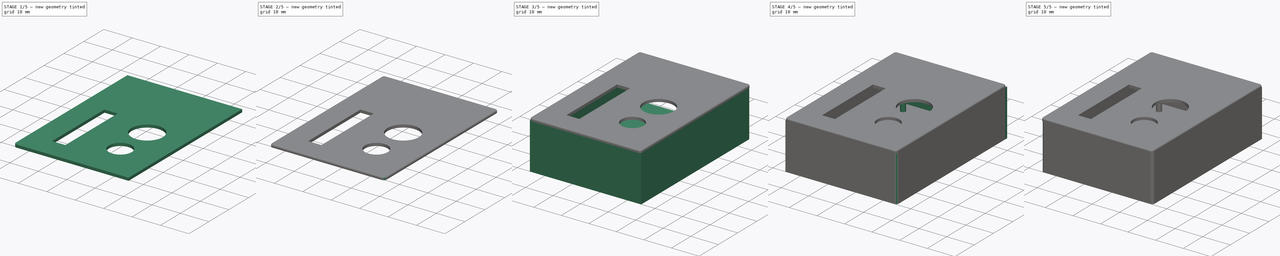
[diagram: build sequence overview — one tinted view per stage of 5, left to right]
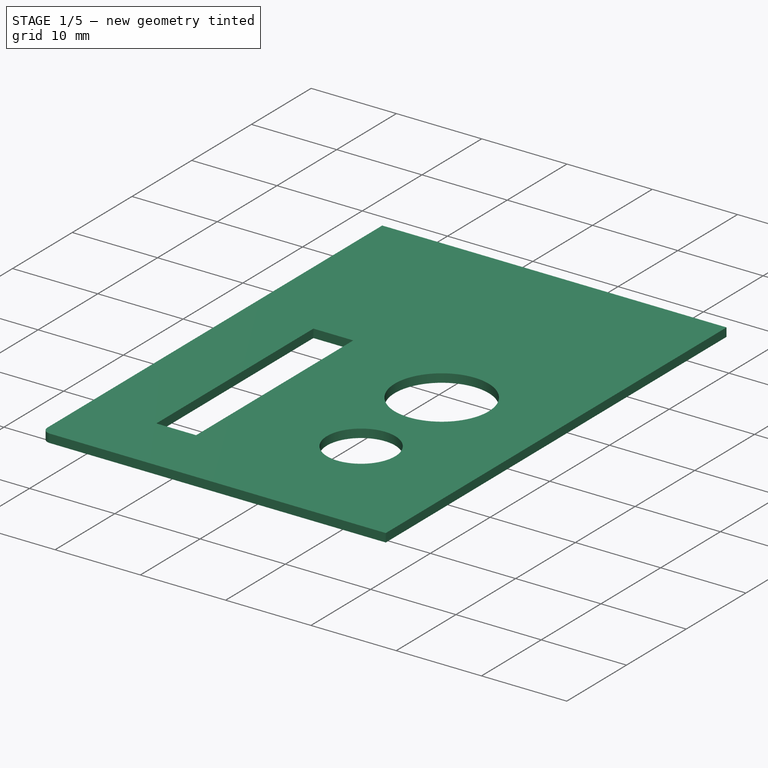
[diagram: stage 1 of 5 — iso view after this stage's code; geometry added in this stage tinted green]
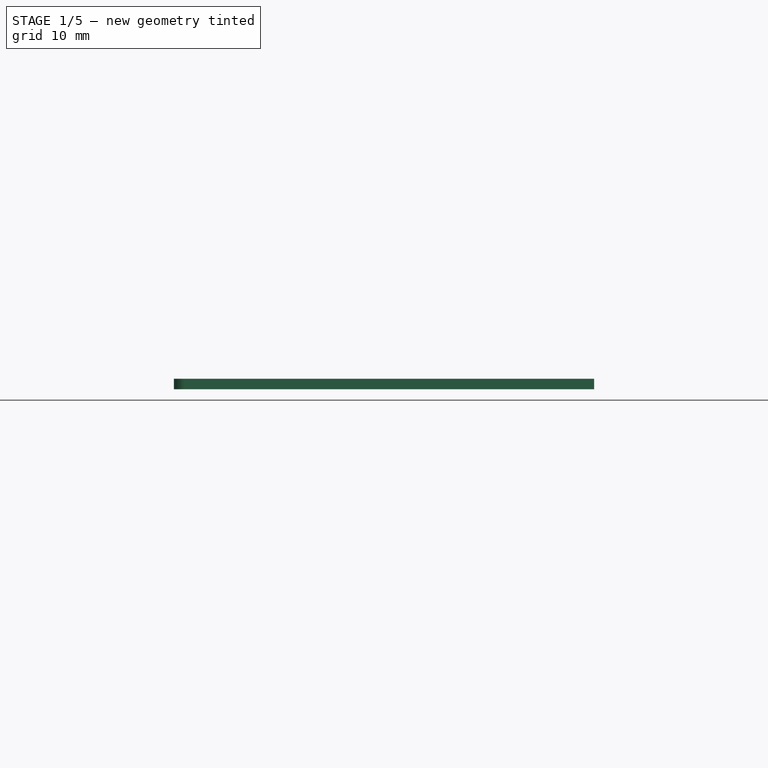
[diagram: stage 1 of 5 — front view after this stage's code; geometry added in this stage tinted green]
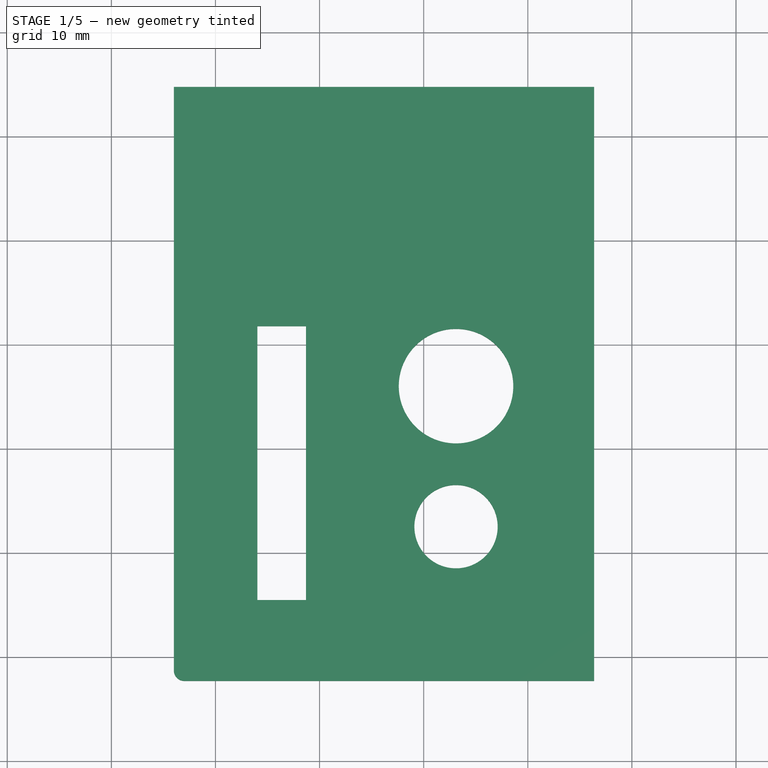
[diagram: stage 1 of 5 — top view after this stage's code; geometry added in this stage tinted green]
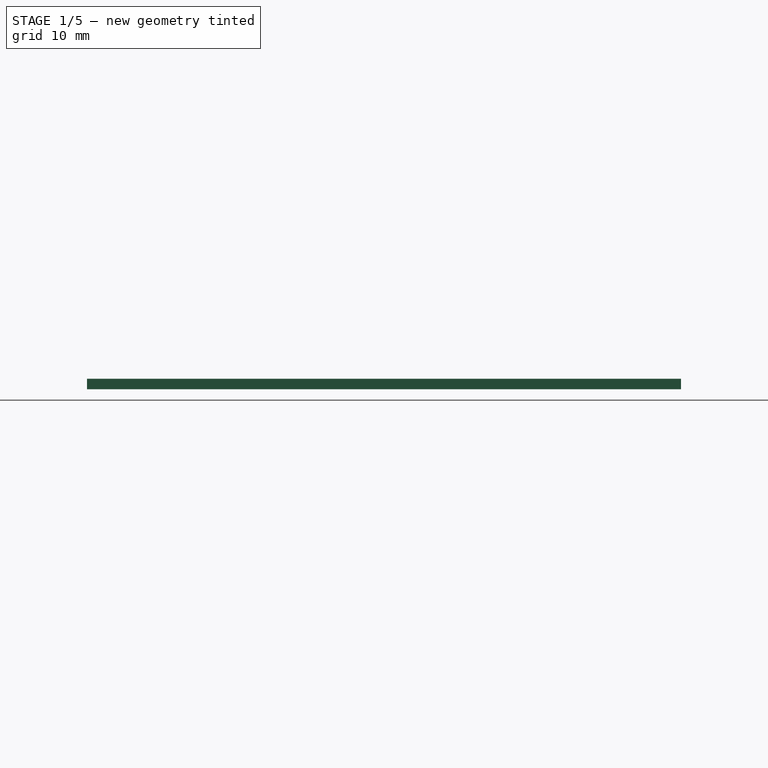
[diagram: stage 1 of 5 — right view after this stage's code; geometry added in this stage tinted green]
FCSTD DOCUMENT  (FreeCAD 0.15R4671 (Git))
Label: Control Board + Enclosure
License: All rights reserved
LicenseURL: http://en.wikipedia.org/wiki/All_rights_reserved
objects: PartDesign::Fillet×9, Sketcher::SketchObject×8, Part::Feature×6, PartDesign::Pad×5, App::DocumentObjectGroup×3, PartDesign::Pocket×3
note: 39 computed .brp shape members not serialized (recipe doc carries the construction recipe); baked Part::Feature solids carry a one-line shape summary decoded from their .brp

FEATURE [App::DocumentObjectGroup] Group001  label="Enclosure"
  Group = -> [Pad001,Pocket,Pad002,Pad003,Pocket001,Fillet,Fillet001,Fillet002,Fillet003]
FEATURE [Sketcher::SketchObject] Sketch009
  Placement = pos=(0,0,10.9) rot=(0,0,1;0rad)
  sketch-geometry (4):
    g0: LineSegment StartX=-3.99774 StartY=54.775 StartZ=0 EndX=36.3748 EndY=54.775 EndZ=0
    g1: LineSegment StartX=36.3748 StartY=54.775 StartZ=0 EndX=36.3748 EndY=-2.28504 EndZ=0
    g2: LineSegment StartX=36.3748 StartY=-2.28504 StartZ=0 EndX=-3.99774 EndY=-2.28504 EndZ=0
    g3: LineSegment StartX=-3.99774 StartY=-2.28504 StartZ=0 EndX=-3.99774 EndY=54.775 EndZ=0
  constraints (10):
    c: Coincident(g0,g1)
    c: Coincident(g1,g2)
    c: Coincident(g2,g3)
    c: Coincident(g3,g0)
    c: Horizontal(g0)
    c: Horizontal(g2)
    c: Vertical(g1)
    c: Vertical(g3)
    c: DistanceX(g0,g0) = 40.3725
    c: DistanceY(g0,g1) = -57.06
FEATURE [PartDesign::Pad] Pad005
  Length = 1
  Length2 = 100
  Placement = pos=(0,0,10.9) rot=(0,0,1;0rad)
  Sketch = -> Sketch009
  Type = 0
FEATURE [Sketcher::SketchObject] Sketch010
  Placement = pos=(0,0,11.9) rot=(0,0,1;0rad)
  Support = -> Pad005 [Face6]
  sketch-geometry (7):
    g0: LineSegment StartX=4.02764 StartY=31.788 StartZ=0 EndX=8.70181 EndY=31.788 EndZ=0
    g1: LineSegment StartX=8.70181 StartY=31.788 StartZ=0 EndX=8.70181 EndY=5.48588 EndZ=0
    g2: LineSegment StartX=8.70181 StartY=5.48588 StartZ=0 EndX=4.02764 EndY=5.48588 EndZ=0
    g3: LineSegment StartX=4.02764 StartY=5.48588 StartZ=0 EndX=4.02764 EndY=31.788 EndZ=0
    g4: Circle CenterX=23.1067 CenterY=26.0307 CenterZ=0 NormalX=0 NormalY=0 NormalZ=1 Radius=5.5
    g5: Circle CenterX=23.1067 CenterY=12.5307 CenterZ=0 NormalX=0 NormalY=0 NormalZ=1 Radius=4
    g6: LineSegment [constr] StartX=23.1067 StartY=26.0307 StartZ=0 EndX=23.1067 EndY=12.5307 EndZ=0
  constraints (14):
    c: Coincident(g0,g1)
    c: Coincident(g1,g2)
    c: Coincident(g2,g3)
    c: Coincident(g3,g0)
    c: Horizontal(g0)
    c: Horizontal(g2)
    c: Vertical(g1)
    c: Vertical(g3)
    c: Coincident(g6,g4)
    c: Coincident(g6,g5)
    c: Vertical(g6)
    c: Radius(g4) = 5.5
    c: Radius(g5) = 4
    c: DistanceY(g4,g5) = -13.5
FEATURE [PartDesign::Pocket] Pocket003
  Length = 2
  Placement = pos=(0,0,10.9) rot=(0,0,1;0rad)
  Sketch = -> Sketch010
  Type = 0
FEATURE [PartDesign::Fillet] Fillet009
  Base = -> Pocket003 [Edge5]
  Placement = pos=(0,0,10.9) rot=(0,0,1;0rad)
  Radius = 1
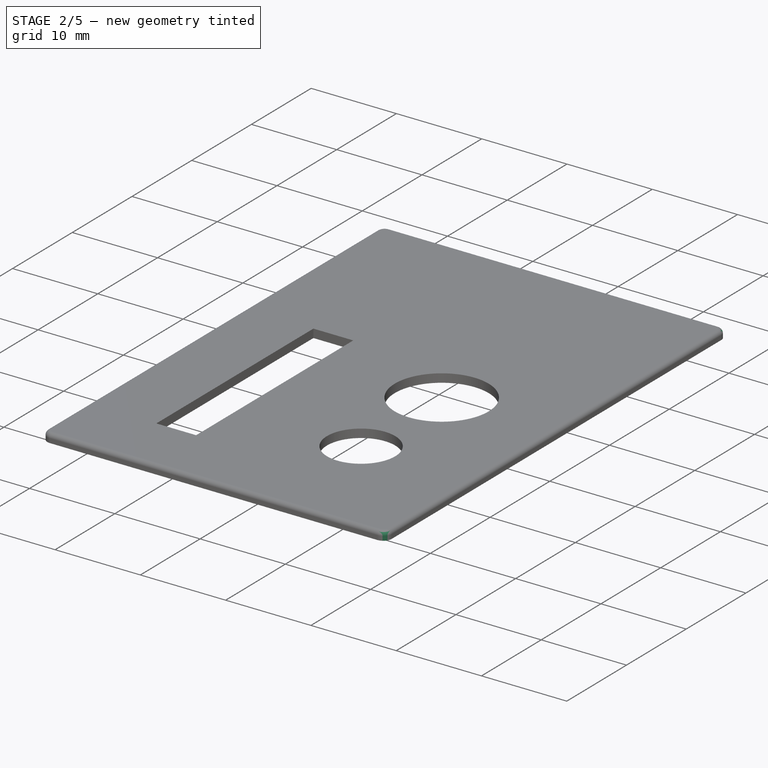
[diagram: stage 2 of 5 — iso view after this stage's code; geometry added in this stage tinted green]
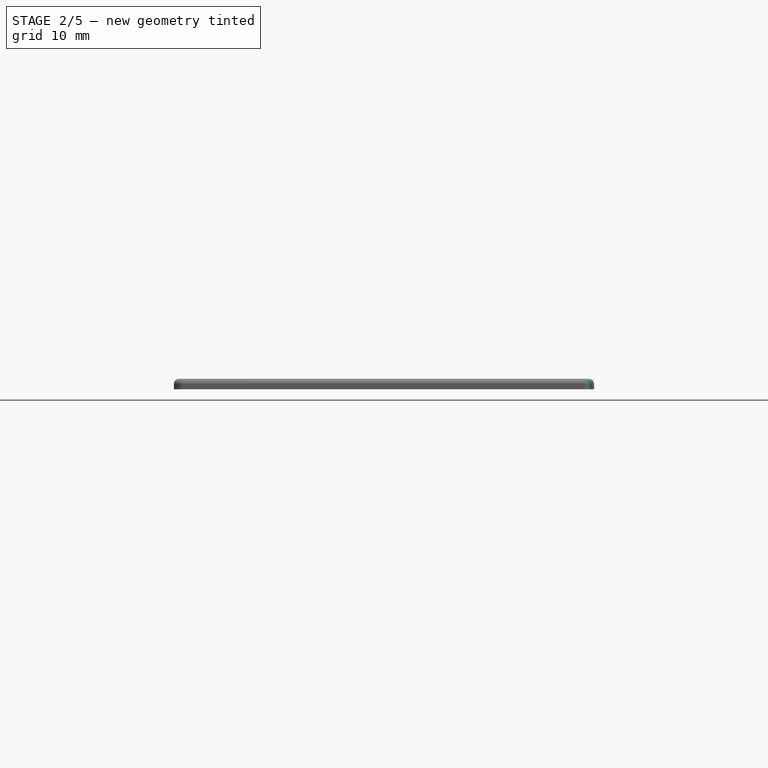
[diagram: stage 2 of 5 — front view after this stage's code; geometry added in this stage tinted green]
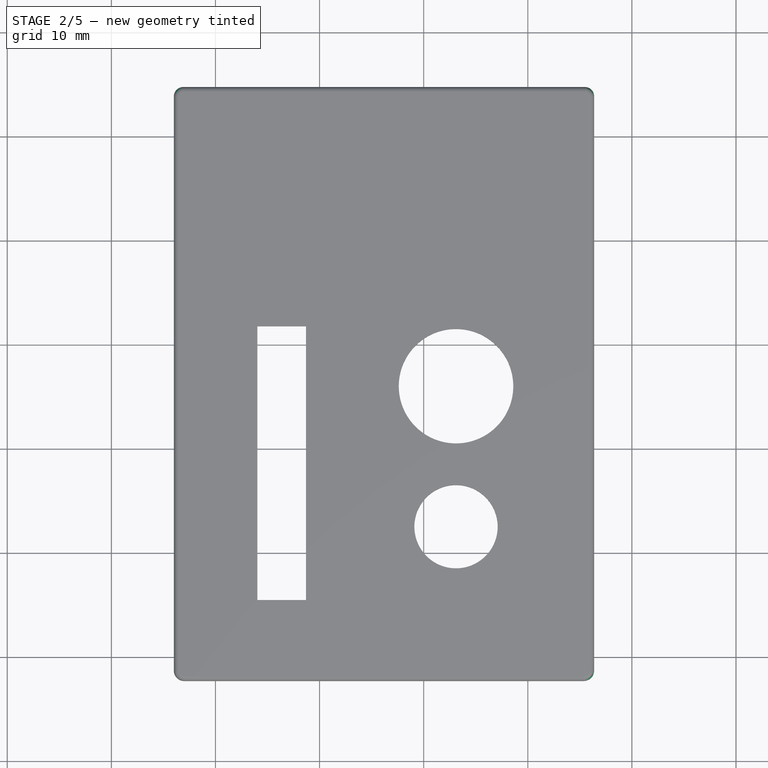
[diagram: stage 2 of 5 — top view after this stage's code; geometry added in this stage tinted green]
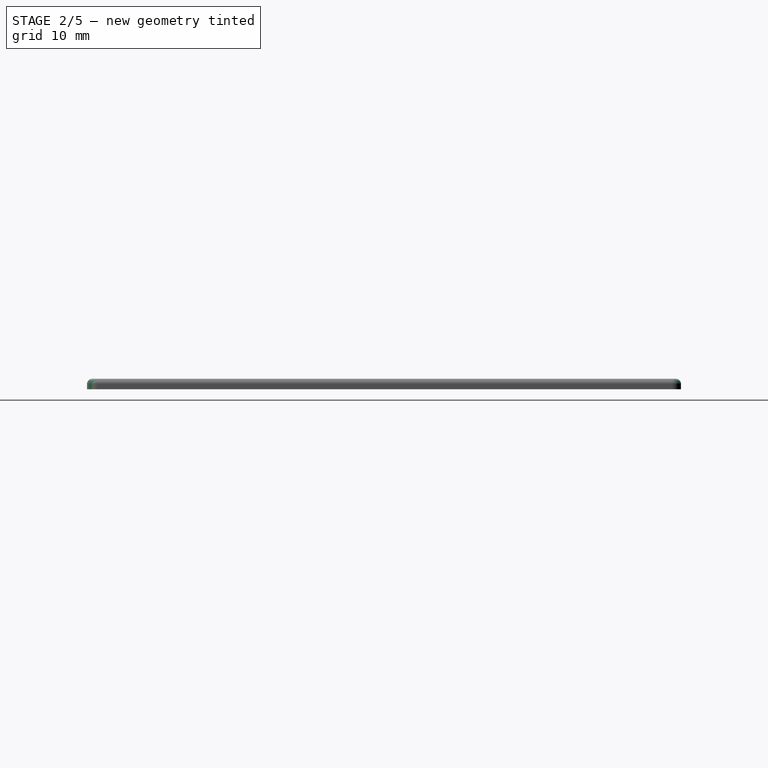
[diagram: stage 2 of 5 — right view after this stage's code; geometry added in this stage tinted green]
FEATURE [PartDesign::Fillet] Fillet010
  Base = -> Fillet009 [Edge27]
  Placement = pos=(0,0,10.9) rot=(0,0,1;0rad)
  Radius = 1
FEATURE [PartDesign::Fillet] Fillet011
  Base = -> Fillet010 [Edge20]
  Placement = pos=(0,0,10.9) rot=(0,0,1;0rad)
  Radius = 0.9
FEATURE [PartDesign::Fillet] Fillet012
  Base = -> Fillet011 [Edge21]
  Placement = pos=(0,0,10.9) rot=(0,0,1;0rad)
  Radius = 0.9
FEATURE [PartDesign::Fillet] Fillet013
  Base = -> Fillet012 [Edge25]
  Placement = pos=(0,0,10.9) rot=(0,0,1;0rad)
  Radius = 0.5
FEATURE [App::DocumentObjectGroup] Group002  label="Enclosure Top"
  Group = -> [Pad005,Pocket003,Fillet009,Fillet010,Fillet011,Fillet012,Fillet013]
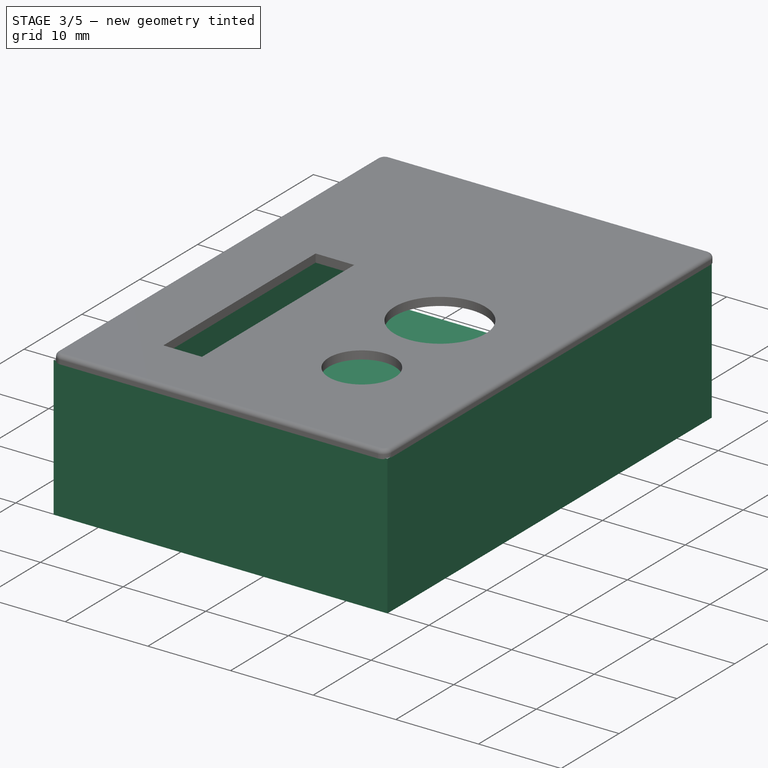
[diagram: stage 3 of 5 — iso view after this stage's code; geometry added in this stage tinted green]
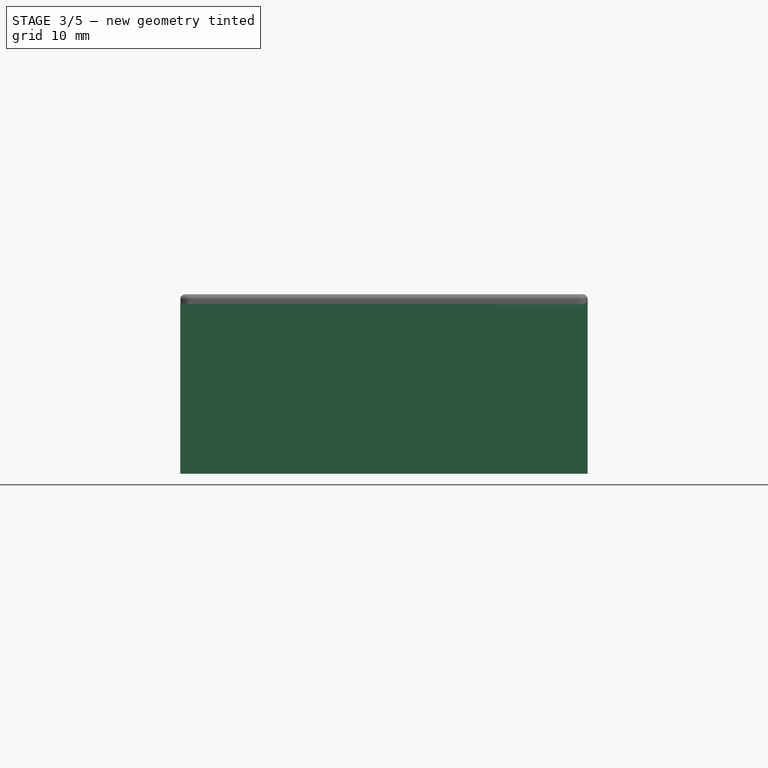
[diagram: stage 3 of 5 — front view after this stage's code; geometry added in this stage tinted green]
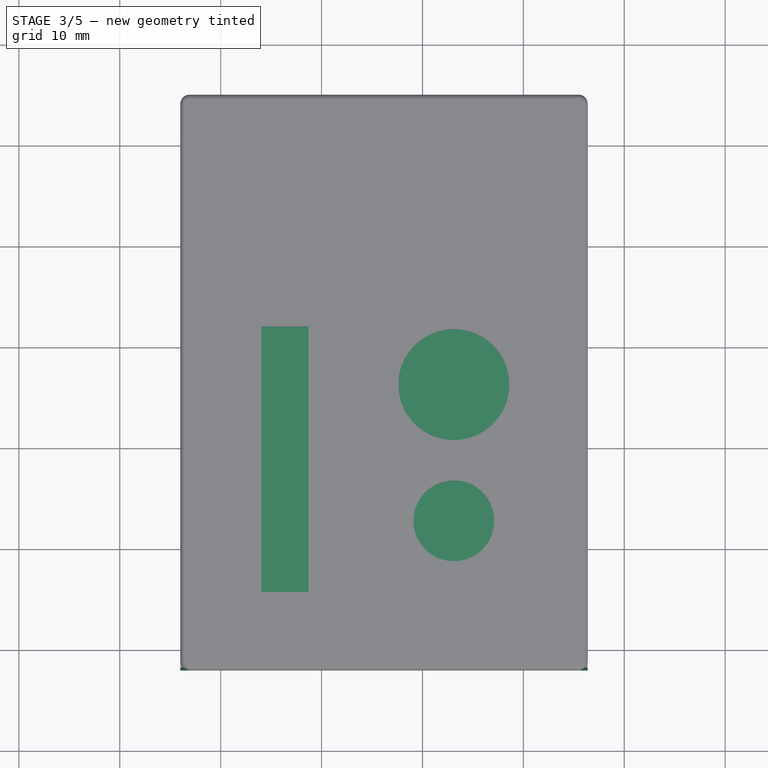
[diagram: stage 3 of 5 — top view after this stage's code; geometry added in this stage tinted green]
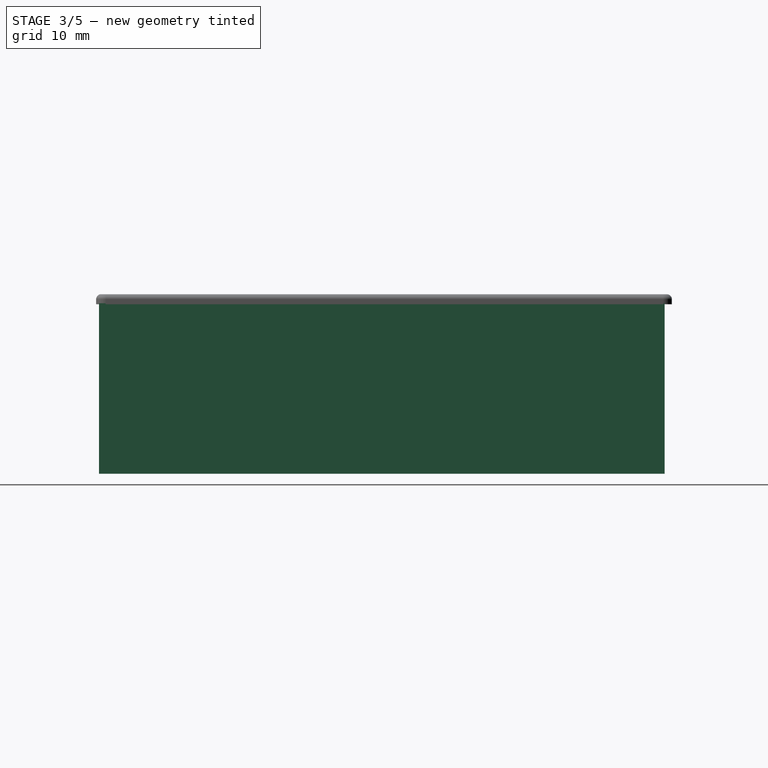
[diagram: stage 3 of 5 — right view after this stage's code; geometry added in this stage tinted green]
FEATURE [Part::Feature] Part__Feature  label="Rotary"
  Placement = pos=(27.8444,11.6718,2.49206) rot=(0.579537,0.573998,0.578501;4.18221rad)
  shape: bbox 10.71 x 13.44 x 25.96 mm, 62 faces (baked)
FEATURE [Part::Feature] Part__Feature002  label="Button"
  Placement = pos=(22.8995,26.0923,1.71929) rot=(-0.293836,0.953761,0.063244;0.019769rad)
  shape: bbox 11.51 x 12.03 x 17.95 mm, 23 faces (baked)
FEATURE [Part::Feature] Part__Feature004  label="Slide"
  Placement = pos=(1.83795,36.2282,0) rot=(0,0,-1;1.5708rad)
  shape: bbox 9 x 35 x 19 mm, 53 faces (baked)
FEATURE [Part::Feature] Part__Feature005  label="Board_outline"
  shape: bbox 32.37 x 52.06 x 1.6 mm, 49 faces (baked)
FEATURE [Part::Feature] Part__Feature006  label="PJ-202A"
  Placement = pos=(23.1496,52.7454,6.50005) rot=(0.57857,0.576739,0.576739;2.09257rad)
  shape: bbox 9.44 x 14.43 x 14.5 mm, 63 faces (baked)
FEATURE [Part::Feature] Part__Feature007  label="4-pin header"
  Placement = pos=(9.5739,45.4495,0.000226225) rot=(0,0,1;0rad)
  shape: bbox 10.66 x 10.4 x 6.07 mm, 66 faces (baked)
FEATURE [Sketcher::SketchObject] Sketch  label="Board2D"
  sketch-geometry (47):
    g0: LineSegment StartX=0 StartY=52.06 StartZ=0 EndX=0 EndY=0 EndZ=0
    g1: LineSegment StartX=32.3725 StartY=52.06 StartZ=0 EndX=0 EndY=52.06 EndZ=0
    g2: LineSegment StartX=0 StartY=0 StartZ=0 EndX=32.3725 EndY=0 EndZ=0
    g3: LineSegment StartX=32.3725 StartY=0 StartZ=0 EndX=32.3725 EndY=52.06 EndZ=0
    g4: Circle CenterX=8.1 CenterY=2.23 CenterZ=0 NormalX=0 NormalY=0 NormalZ=1 Radius=0.6
    g5: Circle CenterX=8.26 CenterY=43.82 CenterZ=0 NormalX=0 NormalY=0 NormalZ=1 Radius=0.51
    g6: Circle CenterX=13.97 CenterY=2.54 CenterZ=0 NormalX=0 NormalY=0 NormalZ=1 Radius=1.27
    g7: Circle CenterX=17.78 CenterY=35.56 CenterZ=0 NormalX=0 NormalY=0 NormalZ=1 Radius=0.45
    g8: Circle CenterX=16.19 CenterY=22.23 CenterZ=0 NormalX=0 NormalY=0 NormalZ=1 Radius=0.4
    g9: Circle CenterX=16.19 CenterY=24.77 CenterZ=0 NormalX=0 NormalY=0 NormalZ=1 Radius=0.4
    g10: Circle CenterX=13.65 CenterY=22.23 CenterZ=0 NormalX=0 NormalY=0 NormalZ=1 Radius=0.4
    g11: Circle CenterX=13.65 CenterY=24.77 CenterZ=0 NormalX=0 NormalY=0 NormalZ=1 Radius=0.4
    g12: Circle CenterX=15.24 CenterY=35.56 CenterZ=0 NormalX=0 NormalY=0 NormalZ=1 Radius=0.45
    g13: Circle CenterX=10.55 CenterY=31.43 CenterZ=0 NormalX=0 NormalY=0 NormalZ=1 Radius=0.85
    g14: Circle CenterX=10.55 CenterY=6.03 CenterZ=0 NormalX=0 NormalY=0 NormalZ=1 Radius=0.85
    g15: Circle CenterX=17.36 CenterY=11.6275 CenterZ=0 NormalX=0 NormalY=0 NormalZ=1 Radius=1
    g16: Circle CenterX=13.65 CenterY=19.69 CenterZ=0 NormalX=0 NormalY=0 NormalZ=1 Radius=0.4
    g17: Circle CenterX=16.19 CenterY=19.69 CenterZ=0 NormalX=0 NormalY=0 NormalZ=1 Radius=0.4
    g18: Circle CenterX=13.34 CenterY=43.82 CenterZ=0 NormalX=0 NormalY=0 NormalZ=1 Radius=0.51
    g19: Circle CenterX=10.79 CenterY=43.82 CenterZ=0 NormalX=0 NormalY=0 NormalZ=1 Radius=0.51
    g20: Circle CenterX=18.41 CenterY=41.91 CenterZ=0 NormalX=0 NormalY=0 NormalZ=1 Radius=0.65
    g21: Circle CenterX=30.1625 CenterY=2.54 CenterZ=0 NormalX=0 NormalY=0 NormalZ=1 Radius=1.27
    g22: Circle CenterX=28.36 CenterY=11.6275 CenterZ=0 NormalX=0 NormalY=0 NormalZ=1 Radius=1
    g23: Circle CenterX=29.21 CenterY=29.53 CenterZ=0 NormalX=0 NormalY=0 NormalZ=1 Radius=0.405
    g24: Circle CenterX=29.21 CenterY=24.45 CenterZ=0 NormalX=0 NormalY=0 NormalZ=1 Radius=0.405
    g25: Circle CenterX=29.21 CenterY=16.83 CenterZ=0 NormalX=0 NormalY=0 NormalZ=1 Radius=0.405
    g26: Circle CenterX=25.36 CenterY=23.54 CenterZ=0 NormalX=0 NormalY=0 NormalZ=1 Radius=0.55
    g27: Circle CenterX=25.36 CenterY=1.63 CenterZ=0 NormalX=0 NormalY=0 NormalZ=1 Radius=0.5
    g28: Circle CenterX=25.36 CenterY=4.13 CenterZ=0 NormalX=0 NormalY=0 NormalZ=1 Radius=0.5
    g29: Circle CenterX=25.36 CenterY=28.54 CenterZ=0 NormalX=0 NormalY=0 NormalZ=1 Radius=0.55
    g30: Circle CenterX=22.86 CenterY=1.63 CenterZ=0 NormalX=0 NormalY=0 NormalZ=1 Radius=0.5
    g31: Circle CenterX=22.86 CenterY=4.13 CenterZ=0 NormalX=0 NormalY=0 NormalZ=1 Radius=0.5
    g32: Circle CenterX=20.36 CenterY=1.63 CenterZ=0 NormalX=0 NormalY=0 NormalZ=1 Radius=0.5
    g33: Circle CenterX=20.36 CenterY=4.13 CenterZ=0 NormalX=0 NormalY=0 NormalZ=1 Radius=0.5
    g34: Circle CenterX=20.32 CenterY=35.56 CenterZ=0 NormalX=0 NormalY=0 NormalZ=1 Radius=0.45
    g35: Circle CenterX=20.36 CenterY=23.54 CenterZ=0 NormalX=0 NormalY=0 NormalZ=1 Radius=0.55
    g36: Circle CenterX=20.36 CenterY=28.54 CenterZ=0 NormalX=0 NormalY=0 NormalZ=1 Radius=0.55
    g37: Circle CenterX=23.12 CenterY=44.91 CenterZ=0 NormalX=0 NormalY=0 NormalZ=1 Radius=0.65
    g38: Circle CenterX=23.12 CenterY=38.91 CenterZ=0 NormalX=0 NormalY=0 NormalZ=1 Radius=0.65
    g39: Circle CenterX=29.21 CenterY=37.15 CenterZ=0 NormalX=0 NormalY=0 NormalZ=1 Radius=0.405
    g40: Circle CenterX=30.1625 CenterY=49.53 CenterZ=0 NormalX=0 NormalY=0 NormalZ=1 Radius=1.27
    g41: Circle CenterX=4.6 CenterY=35.23 CenterZ=0 NormalX=0 NormalY=0 NormalZ=1 Radius=0.6
    g42: Circle CenterX=4.6 CenterY=2.23 CenterZ=0 NormalX=0 NormalY=0 NormalZ=1 Radius=0.6
    g43: Circle CenterX=5.71 CenterY=43.82 CenterZ=0 NormalX=0 NormalY=0 NormalZ=1 Radius=0.51
    g44: Circle CenterX=2.15 CenterY=7.33 CenterZ=0 NormalX=0 NormalY=0 NormalZ=1 Radius=0.85
    g45: Circle CenterX=2.54 CenterY=49.53 CenterZ=0 NormalX=0 NormalY=0 NormalZ=1 Radius=1.27
    g46: Circle CenterX=2.15 CenterY=30.13 CenterZ=0 NormalX=0 NormalY=0 NormalZ=1 Radius=0.85
FEATURE [PartDesign::Pad] Pad
  Length = 0.1
  Length2 = 100
  Sketch = -> Sketch
  Type = 0
FEATURE [App::DocumentObjectGroup] Group  label="Board"
  Group = -> [Part__Feature,Part__Feature002,Part__Feature004,Part__Feature005,Part__Feature006,Part__Feature007,Pad]
FEATURE [Sketcher::SketchObject] Sketch002
  ExternalGeometry = -> [Pad]
  Placement = pos=(0,0,0.1) rot=(0,0,1;0rad)
  Support = -> Pad [Face49]
  sketch-geometry (6):
    g0: LineSegment StartX=-4 StartY=54.06 StartZ=0 EndX=36.3725 EndY=54.06 EndZ=0
    g1: LineSegment StartX=36.3725 StartY=54.06 StartZ=0 EndX=36.3725 EndY=-2 EndZ=0
    g2: LineSegment StartX=36.3725 StartY=-2 StartZ=0 EndX=-4 EndY=-2 EndZ=0
    g3: LineSegment StartX=-4 StartY=-2 StartZ=0 EndX=-4 EndY=54.06 EndZ=0
    g4: LineSegment [constr] StartX=16.1863 StartY=54.06 StartZ=0 EndX=16.1863 EndY=-2 EndZ=0
    g5: LineSegment [constr] StartX=-4 StartY=26.03 StartZ=0 EndX=36.3725 EndY=26.03 EndZ=0
  constraints (18):
    c: Coincident(g0,g1)
    c: Coincident(g1,g2)
    c: Coincident(g2,g3)
    c: Coincident(g3,g0)
    c: Horizontal(g0)
    c: Horizontal(g2)
    c: Vertical(g1)
    c: Vertical(g3)
    c: DistanceX(g-3,g0) = 4
    c: Symmetric(g-4,g-3,g4)
    c: PointOnObject(g4,g2)
    c: PointOnObject(g4,g0)
    c: PointOnObject(g5,g3)
    c: PointOnObject(g5,g1)
    c: Symmetric(g-4,g-1,g5)
    c: Symmetric(g0,g2,g5)
    c: DistanceY(g-3,g1) = -2
    c: Symmetric(g0,g0,g4)
FEATURE [PartDesign::Pad] Pad001
  Length = 10.9
  Length2 = 6
  Sketch = -> Sketch002
  Type = 4
FEATURE [Sketcher::SketchObject] Sketch003
  ExternalGeometry = -> [Pad001]
  Placement = pos=(0,54.06,0) rot=(0,0.707107,0.707107;3.14159rad)
  Support = -> Pad001 [Face1]
  sketch-geometry (5):
    g0: LineSegment StartX=-33.0725 StartY=11 StartZ=0 EndX=0.7 EndY=11 EndZ=0
    g1: LineSegment StartX=0.7 StartY=11 StartZ=0 EndX=0.7 EndY=-3.9 EndZ=0
    g2: LineSegment StartX=0.7 StartY=-3.9 StartZ=0 EndX=-33.0725 EndY=-3.9 EndZ=0
    g3: LineSegment StartX=-33.0725 StartY=-3.9 StartZ=0 EndX=-33.0725 EndY=11 EndZ=0
    g4: LineSegment StartX=-36.3725 StartY=11 StartZ=0 EndX=-33.3725 EndY=12.1 EndZ=0
  constraints (13):
    c: Coincident(g0,g1)
    c: Coincident(g1,g2)
    c: Coincident(g2,g3)
    c: Coincident(g3,g0)
    c: Horizontal(g0)
    c: Horizontal(g2)
    c: Vertical(g1)
    c: Vertical(g3)
    c: PointOnObject(g0,g-3)
    c: DistanceX(g-3,g0) = 3.3
    c: Coincident(g4,g-3)
    c: DistanceX(g0,g-3) = 3.3
    c: DistanceY(g2,g-4) = -2
FEATURE [PartDesign::Pocket] Pocket
  Length = 54.5
  Sketch = -> Sketch003
  Type = 0
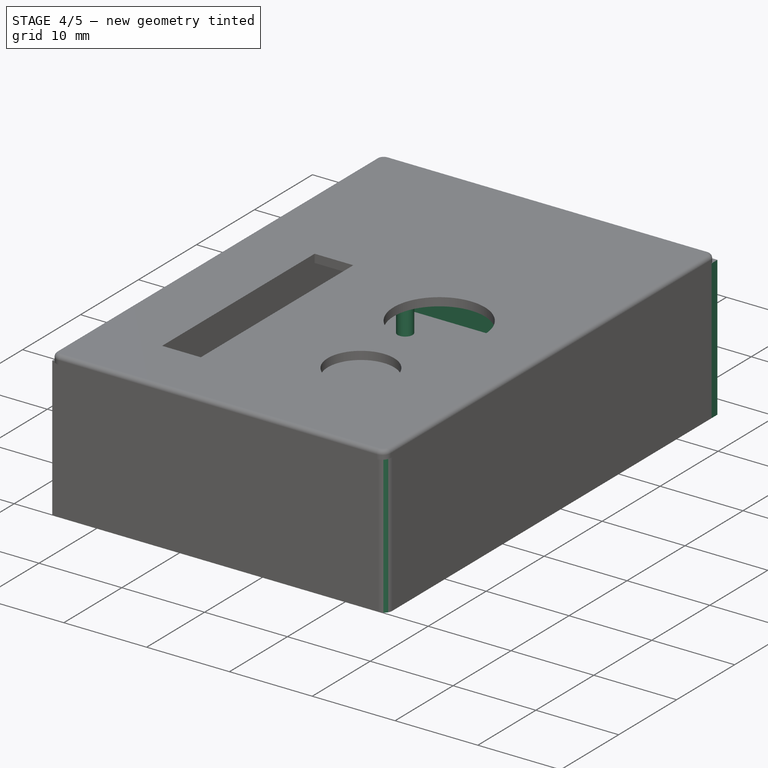
[diagram: stage 4 of 5 — iso view after this stage's code; geometry added in this stage tinted green]
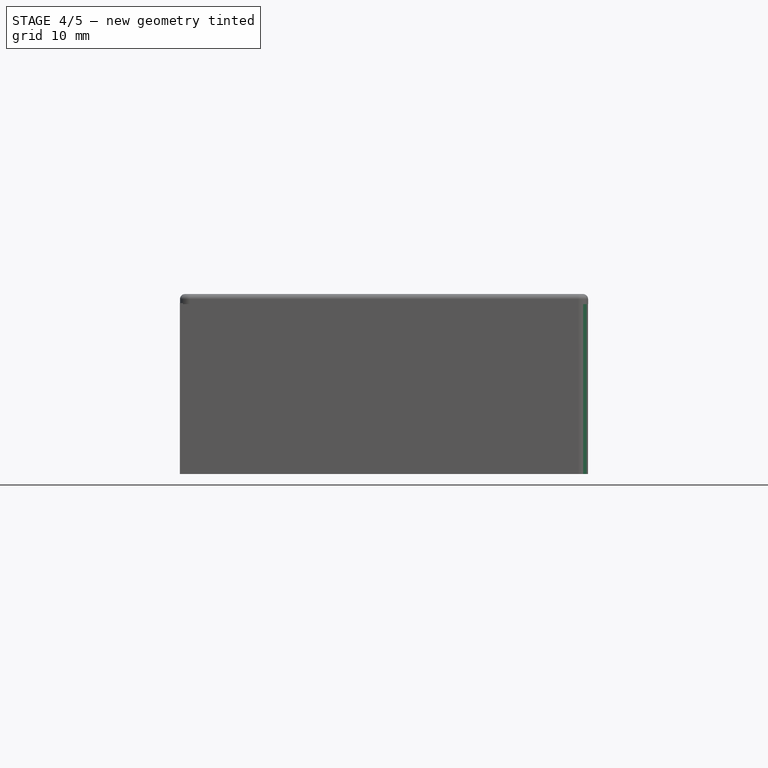
[diagram: stage 4 of 5 — front view after this stage's code; geometry added in this stage tinted green]
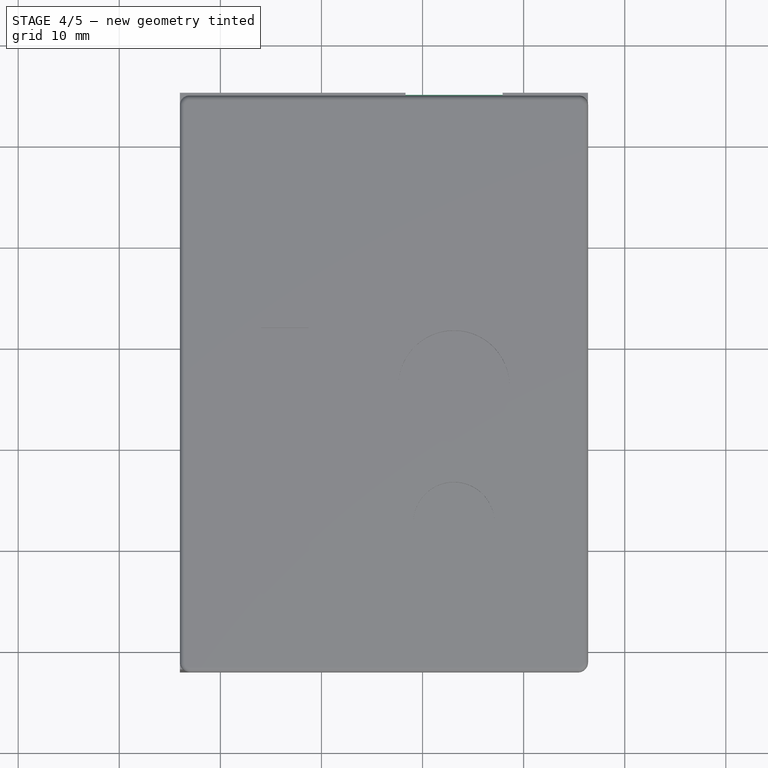
[diagram: stage 4 of 5 — top view after this stage's code; geometry added in this stage tinted green]
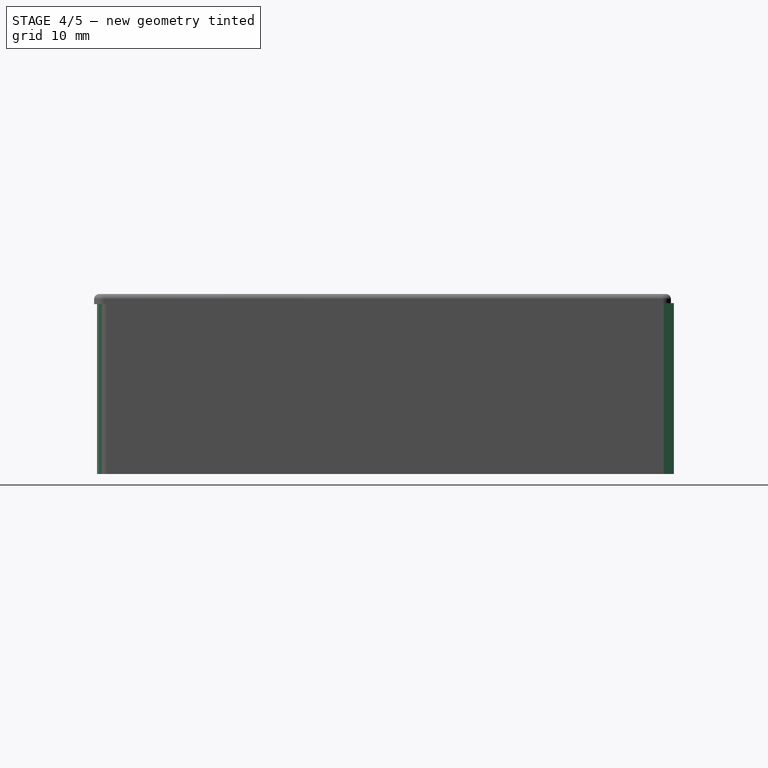
[diagram: stage 4 of 5 — right view after this stage's code; geometry added in this stage tinted green]
FEATURE [Sketcher::SketchObject] Sketch004
  Placement = pos=(0,0,-3.9) rot=(0,0,1;0rad)
  Support = -> Pocket [Face6]
  sketch-geometry (7):
    g0: Circle CenterX=2.53315 CenterY=49.5285 CenterZ=0 NormalX=0 NormalY=0 NormalZ=1 Radius=0.9
    g1: Circle CenterX=30.1614 CenterY=49.5285 CenterZ=0 NormalX=0 NormalY=0 NormalZ=1 Radius=0.9
    g2: LineSegment [constr] StartX=2.53315 StartY=49.5285 StartZ=0 EndX=30.1614 EndY=49.5285 EndZ=0
    g3: Circle CenterX=30.1614 CenterY=2.5701 CenterZ=0 NormalX=0 NormalY=0 NormalZ=1 Radius=0.9
    g4: LineSegment [constr] StartX=30.1614 StartY=49.5285 StartZ=0 EndX=30.1614 EndY=2.5701 EndZ=0
    g5: Circle CenterX=13.958 CenterY=2.5701 CenterZ=0 NormalX=0 NormalY=0 NormalZ=1 Radius=0.9
    g6: LineSegment [constr] StartX=13.958 StartY=2.5701 StartZ=0 EndX=30.1614 EndY=2.5701 EndZ=0
  constraints (13):
    c: Coincident(g2,g0)
    c: Coincident(g2,g1)
    c: Horizontal(g2)
    c: Coincident(g4,g1)
    c: Coincident(g4,g3)
    c: Vertical(g4)
    c: Coincident(g6,g5)
    c: Coincident(g6,g3)
    c: Horizontal(g6)
    c: Radius(g0) = 0.9
    c: Equal(g0,g1)
    c: Equal(g0,g3)
    c: Equal(g0,g5)
FEATURE [PartDesign::Pad] Pad002
  Length = 4
  Length2 = 100
  Sketch = -> Sketch004
  Type = 0
FEATURE [Sketcher::SketchObject] Sketch005
  ExternalGeometry = -> [Pad002]
  Placement = pos=(0,54.06,0) rot=(0,0.707107,0.707107;3.14159rad)
  Support = -> Pad002 [Face1]
  sketch-geometry (4):
    g0: LineSegment StartX=-36.3725 StartY=11 StartZ=0 EndX=4 EndY=11 EndZ=0
    g1: LineSegment StartX=4 StartY=11 StartZ=0 EndX=4 EndY=-5.9 EndZ=0
    g2: LineSegment StartX=4 StartY=-5.9 StartZ=0 EndX=-36.3725 EndY=-5.9 EndZ=0
    g3: LineSegment StartX=-36.3725 StartY=-5.9 StartZ=0 EndX=-36.3725 EndY=11 EndZ=0
  constraints (10):
    c: Coincident(g0,g1)
    c: Coincident(g1,g2)
    c: Coincident(g2,g3)
    c: Coincident(g3,g0)
    c: Horizontal(g0)
    c: Horizontal(g2)
    c: Vertical(g1)
    c: Vertical(g3)
    c: Coincident(g0,g-3)
    c: Coincident(g1,g-4)
FEATURE [PartDesign::Pad] Pad003
  Length = 1
  Length2 = 100
  Sketch = -> Sketch005
  Type = 0
FEATURE [Sketcher::SketchObject] Sketch006
  ExternalGeometry = -> [Pad003]
  Placement = pos=(0,55.06,0) rot=(0,0.707107,0.707107;3.14159rad)
  Support = -> Pad003 [Face16]
  sketch-geometry (8):
    g0: LineSegment StartX=-15.7906 StartY=3.36503 StartZ=0 EndX=-3.22529 EndY=3.36503 EndZ=0
    g1: LineSegment StartX=-3.22529 StartY=3.36503 StartZ=0 EndX=-3.22529 EndY=-0.808931 EndZ=0
    g2: LineSegment StartX=-3.22529 StartY=-0.808931 StartZ=0 EndX=-15.7906 EndY=-0.808931 EndZ=0
    g3: LineSegment StartX=-15.7906 StartY=-0.808931 StartZ=0 EndX=-15.7906 EndY=3.36503 EndZ=0
    g4: LineSegment StartX=-27.9212 StartY=11.1042 StartZ=0 EndX=-18.3124 EndY=11.1042 EndZ=0
    g5: LineSegment StartX=-18.3124 StartY=11.1042 StartZ=0 EndX=-18.3124 EndY=-0.461101 EndZ=0
    g6: LineSegment StartX=-18.3124 StartY=-0.461101 StartZ=0 EndX=-27.9212 EndY=-0.461101 EndZ=0
    g7: LineSegment StartX=-27.9212 StartY=-0.461101 StartZ=0 EndX=-27.9212 EndY=11.1042 EndZ=0
  constraints (16):
    c: Coincident(g0,g1)
    c: Coincident(g1,g2)
    c: Coincident(g2,g3)
    c: Coincident(g3,g0)
    c: Horizontal(g0)
    c: Horizontal(g2)
    c: Vertical(g1)
    c: Vertical(g3)
    c: Coincident(g4,g5)
    c: Coincident(g5,g6)
    c: Coincident(g6,g7)
    c: Coincident(g7,g4)
    c: Horizontal(g4)
    c: Horizontal(g6)
    c: Vertical(g5)
    c: Vertical(g7)
FEATURE [PartDesign::Pocket] Pocket001
  Length = 5
  Sketch = -> Sketch006
  Type = 0
FEATURE [PartDesign::Fillet] Fillet
  Base = -> Pocket001 [Edge28]
  Radius = 1
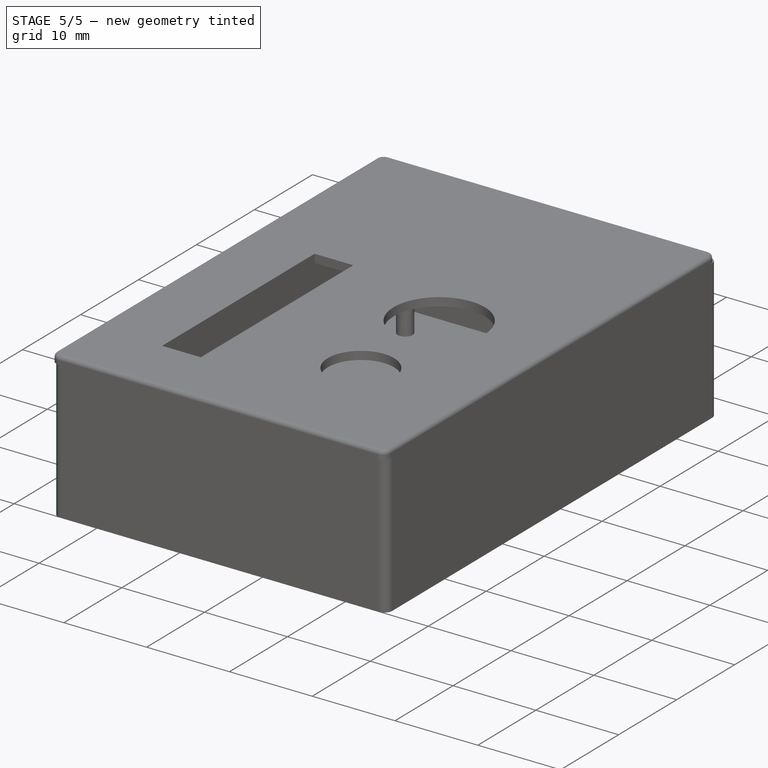
[diagram: stage 5 of 5 — iso view after this stage's code; geometry added in this stage tinted green]
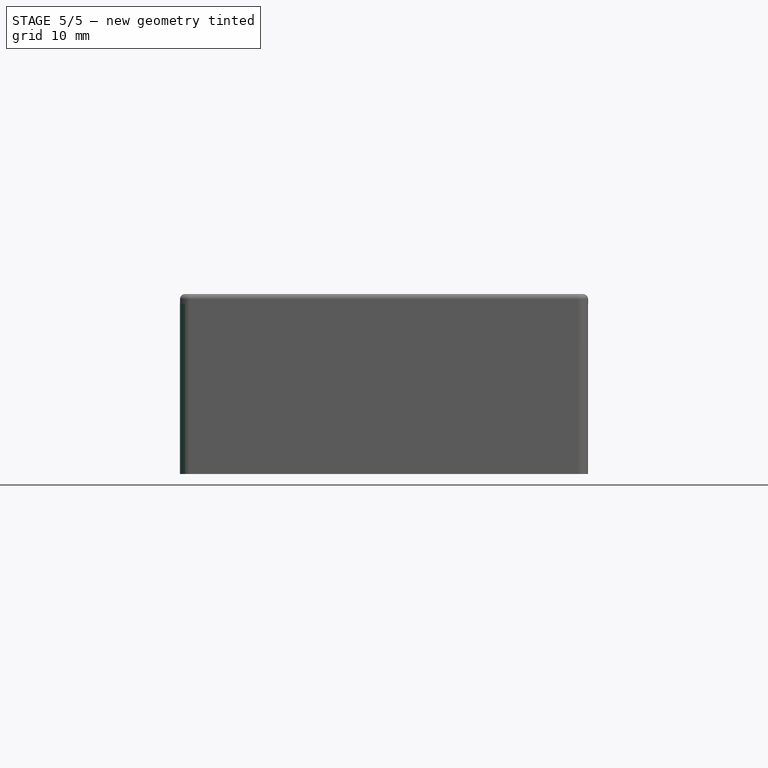
[diagram: stage 5 of 5 — front view after this stage's code; geometry added in this stage tinted green]
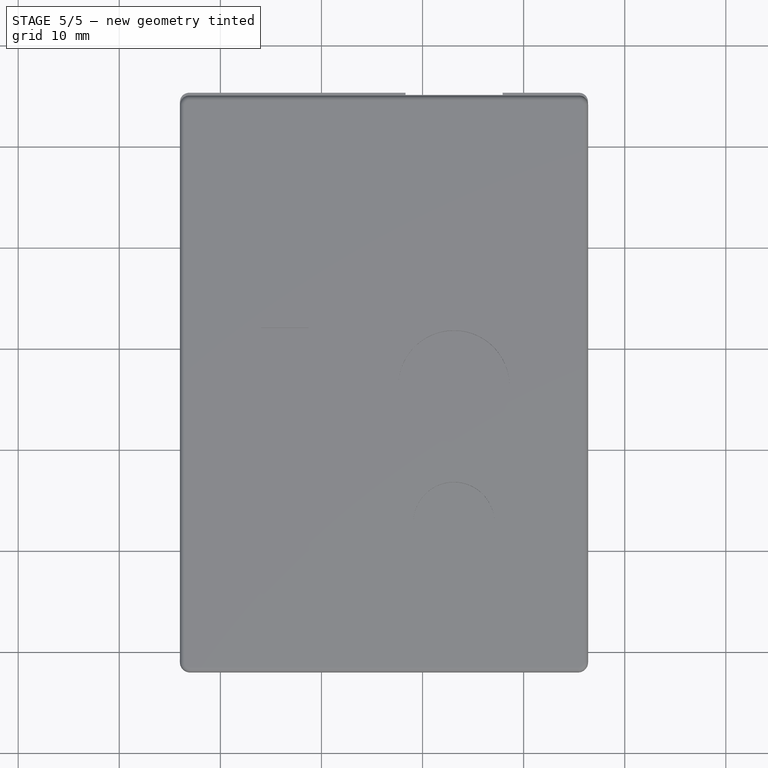
[diagram: stage 5 of 5 — top view after this stage's code; geometry added in this stage tinted green]
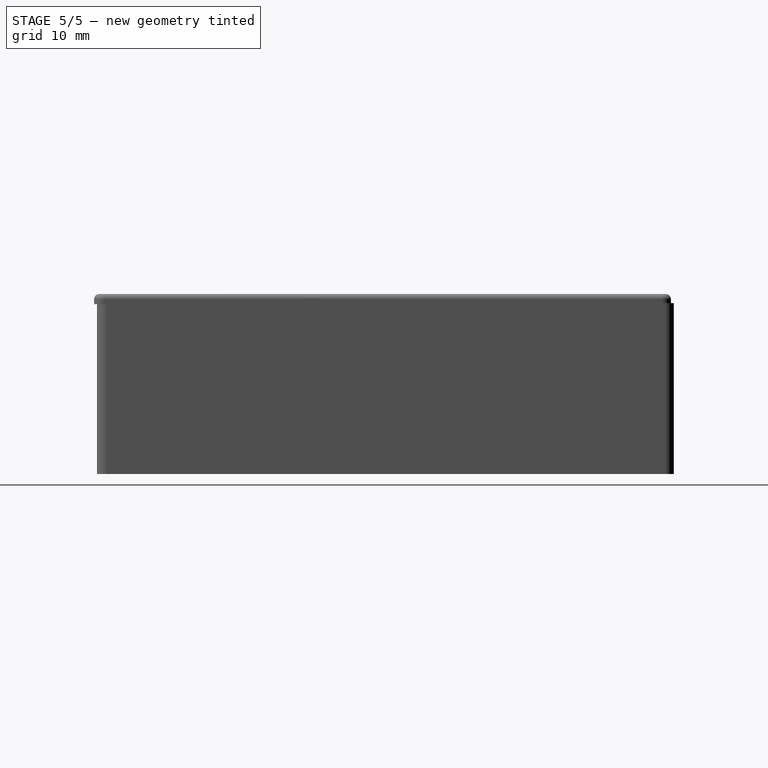
[diagram: stage 5 of 5 — right view after this stage's code; geometry added in this stage tinted green]
FEATURE [PartDesign::Fillet] Fillet001
  Base = -> Fillet [Edge12]
  Radius = 1
FEATURE [PartDesign::Fillet] Fillet002
  Base = -> Fillet001 [Edge41]
  Radius = 0.9
FEATURE [PartDesign::Fillet] Fillet003
  Base = -> Fillet002 [Edge11]
  Radius = 0.9
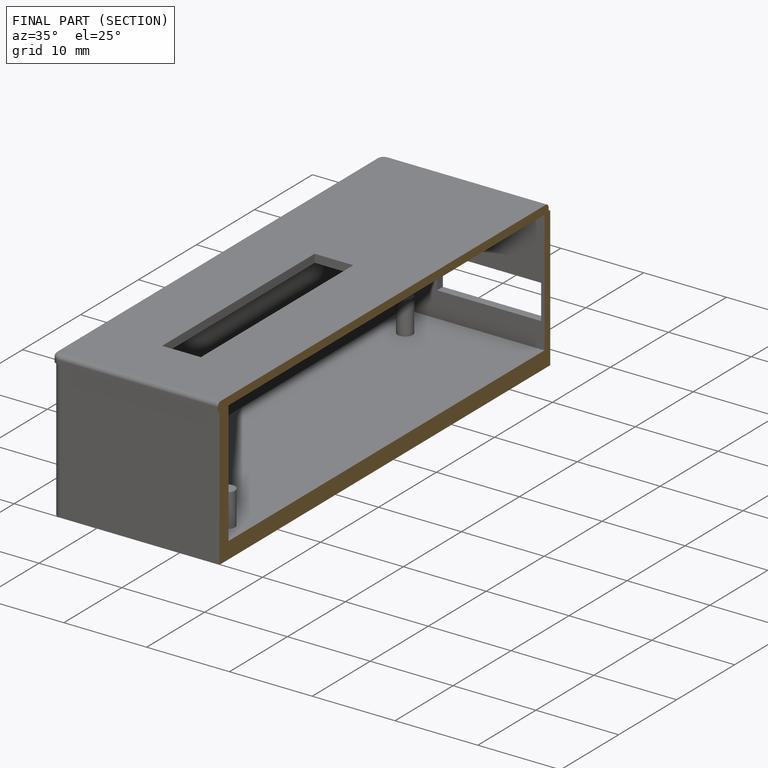
[diagram: finished part — half-section view (interior)]
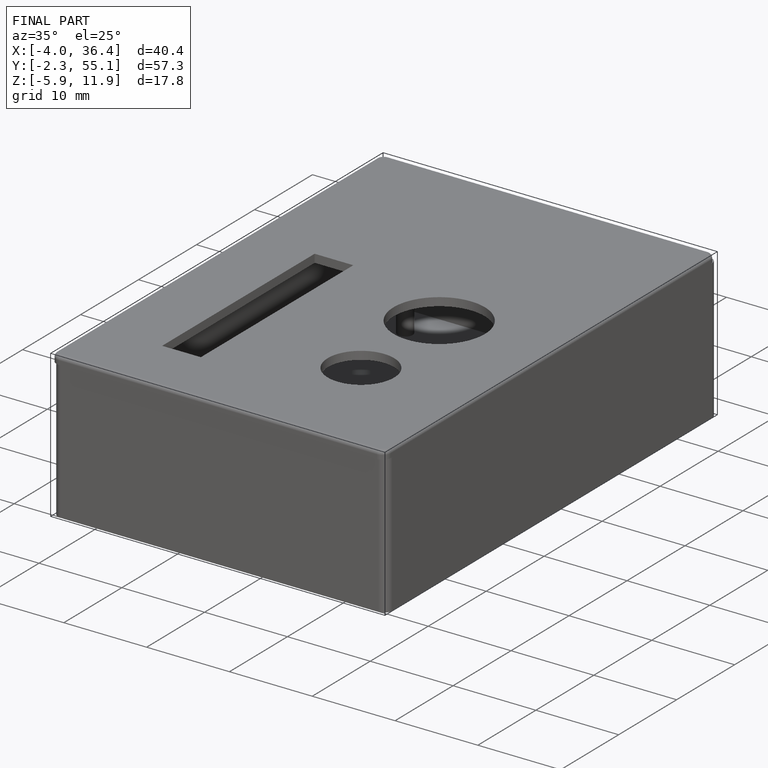
[diagram: finished part — iso view with bounding-box wireframe]
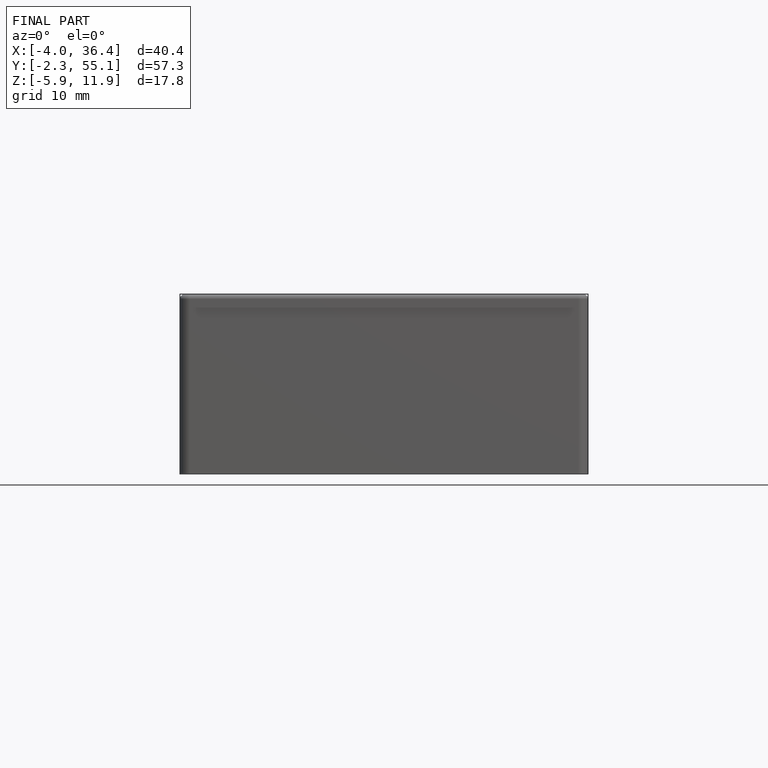
[diagram: finished part — front view with bounding-box wireframe]
